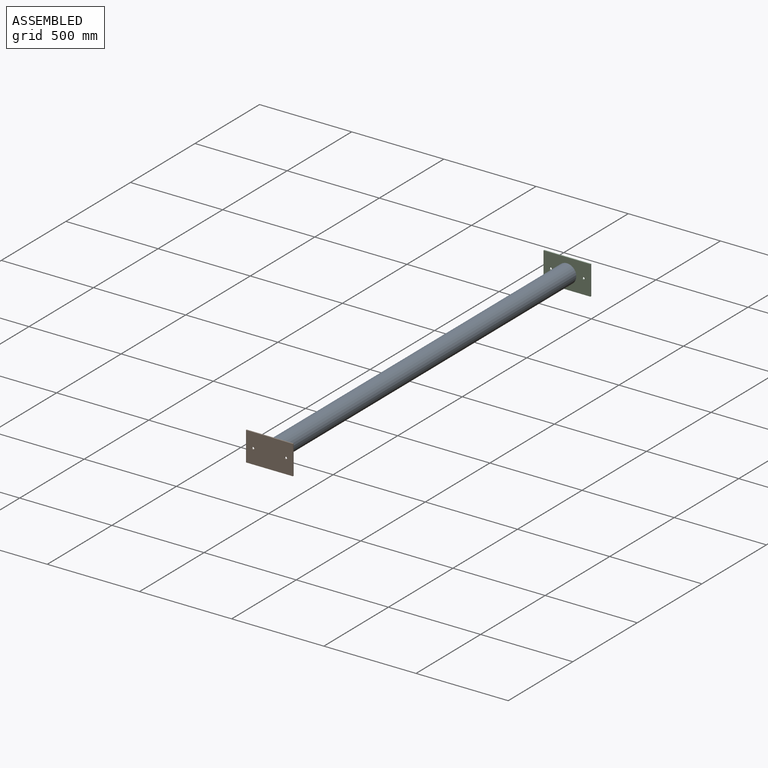
[diagram: assembled view]
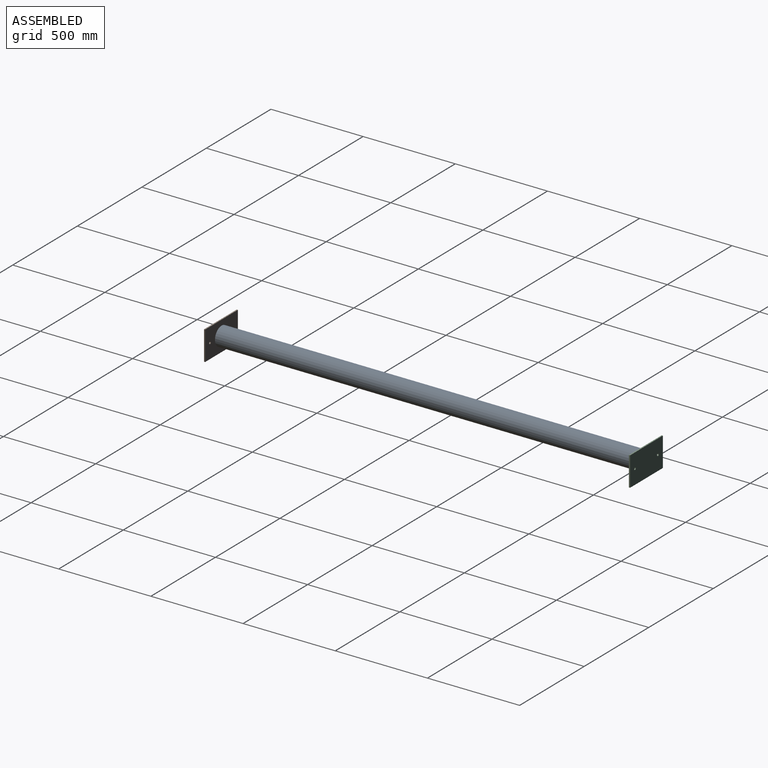
[diagram: assembled view, second angle]
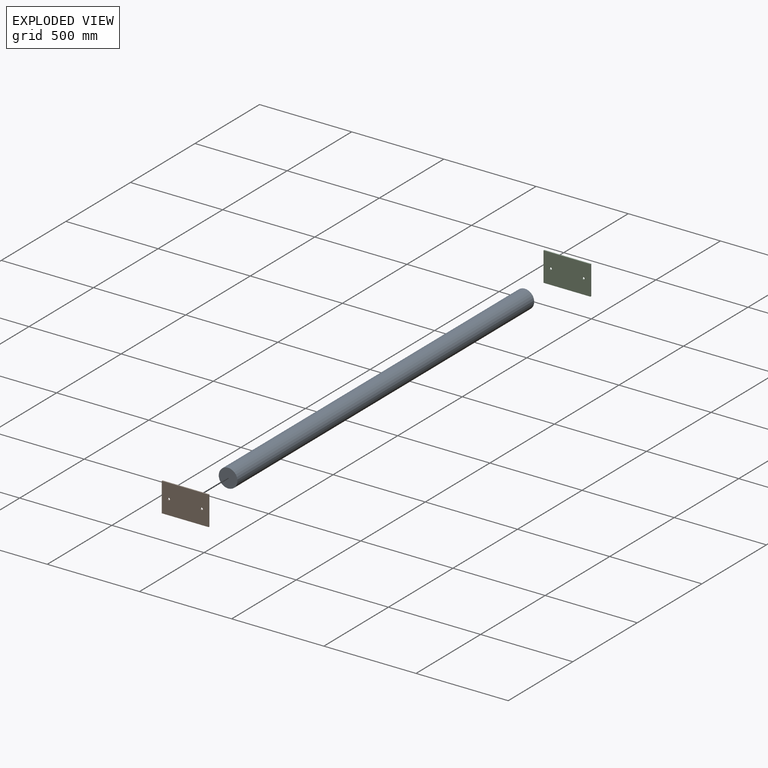
[diagram: exploded view]
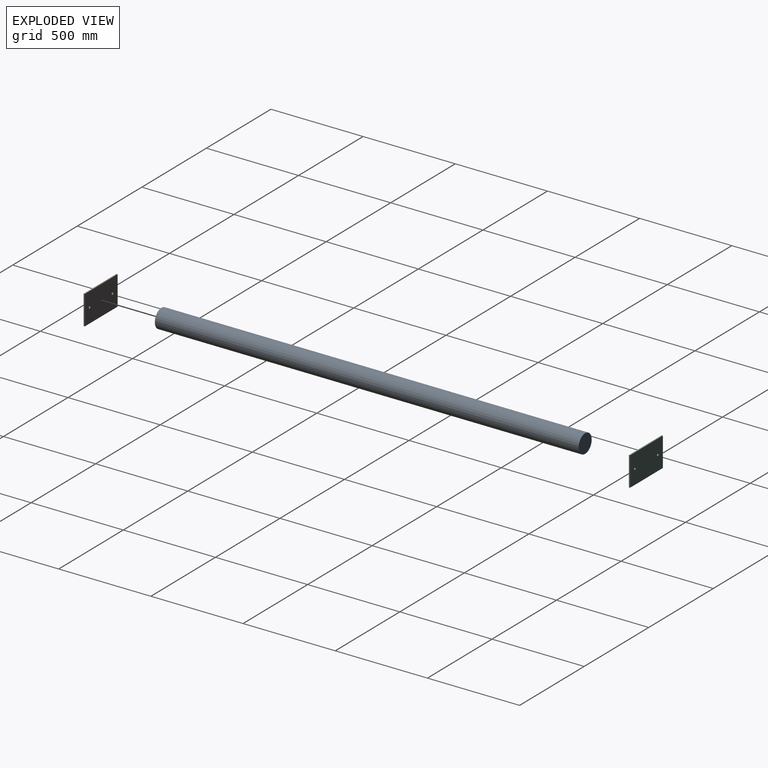
[diagram: exploded view, second angle]
ASSEMBLY  parts=3 mates=2
PART A: 3 faces, bbox 101.6x2298.7x101.6 mm
  f0: cylinder r=50.8mm len=2298.7mm, axis (0,1,0), area 733712.4mm2, adj f1,f2
  f1: plane 101.6x101.6mm, normal (0,-1,0), area 8107.3mm2, adj f0
  f2: plane 101.6x101.6mm, normal (0,1,0), area 8107.3mm2, adj f0
PART B: 8 faces, bbox 254x6.4x158.8 mm
  f0: plane 254x6.35mm, normal (0,0,1), area 1612.9mm2, adj f1,f5,f6,f7
  f1: plane 158.75x6.35mm, normal (-1,0,0), area 1008.1mm2, adj f0,f2,f6,f7
  f2: plane 254x6.35mm, normal (0,0,-1), area 1612.9mm2, adj f1,f5,f6,f7
  f3: cylinder r=6.35mm len=12.7mm, axis (0,1,0), area 253.4mm2, adj f6,f7
  f4: cylinder r=6.35mm len=12.7mm, axis (0,1,0), area 253.4mm2, adj f6,f7
  f5: plane 158.75x6.35mm, normal (1,0,0), area 1008.1mm2, adj f0,f2,f6,f7
  f6: plane 254x158.75mm, normal (0,-1,0), area 40069.1mm2, adj f0,f1,f2,f3,f4,f5
  f7: plane 254x158.75mm, normal (0,1,0), area 40069.1mm2, adj f0,f1,f2,f3,f4,f5
PART C: same geometry as B
PLACE A rot(axis=(1,0,0),180deg) t=(-1657.75,-3171.77,-439.87)mm
PLACE B rot(axis=(1,0,0),180deg) t=(-1006,-3178.12,-510.8)mm
PLACE C t=(-1006,-866.72,15.63)mm
MATE fastened A.f0 <-> C.f6  axis (0,1,0) through (-1220.83,-873.07,-247.58)mm
MATE fastened B.f6 <-> A.f0  axis (0,1,0) through (-1220.83,-3171.77,-247.58)mm
